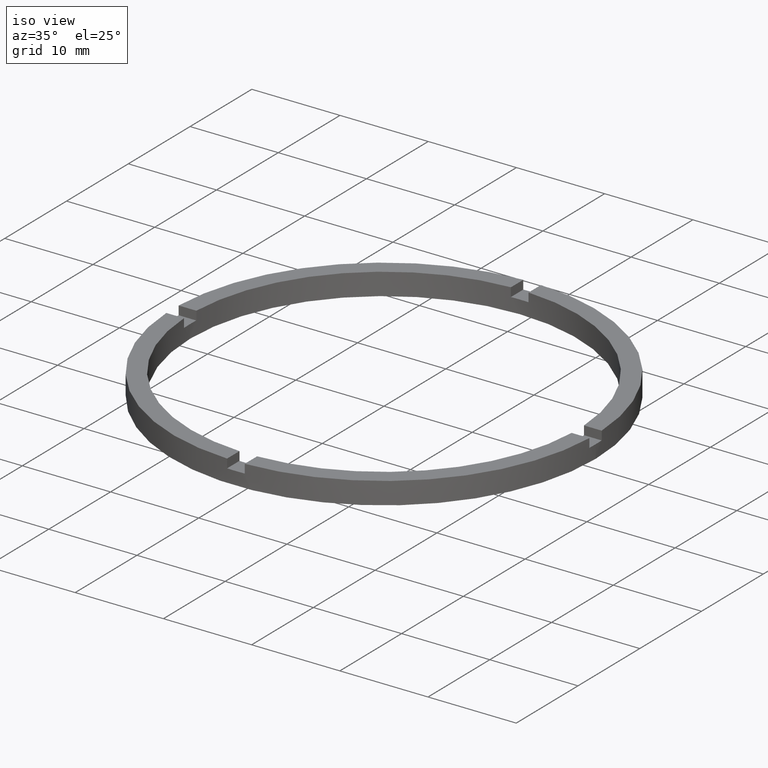
[diagram: clean part render]
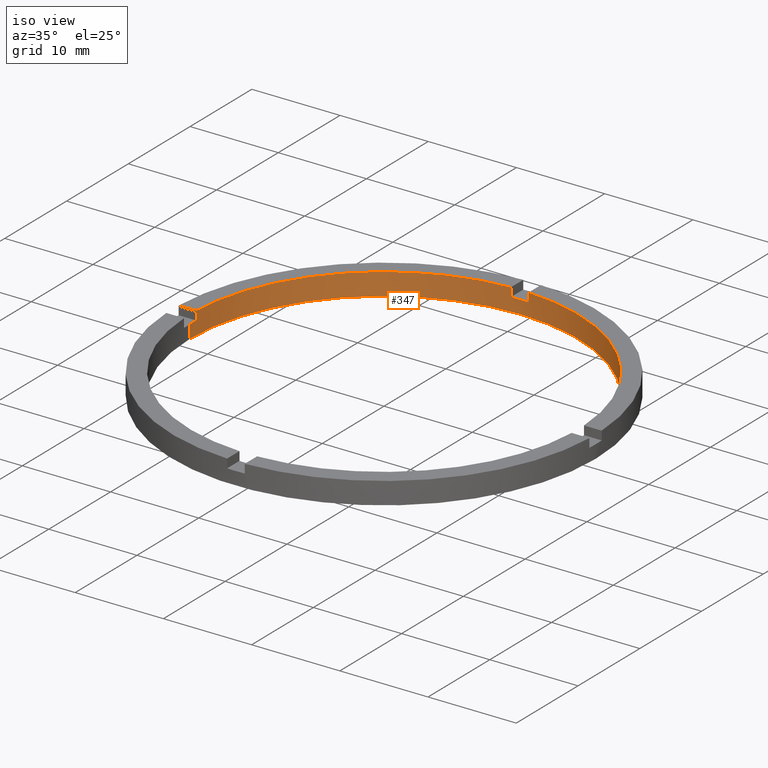
[diagram: same view with one face highlighted and labeled with its STEP entity id]
A machine part, iso view. The second image highlights one B-rep face of the part: STEP entity #347.
In plain terms, the highlighted cylindrical surface (partial cylindrical patch) has radius 22 mm, axis along (-0, -0, -1).
Its self-contained STEP definition (entity closure, byte-faithful):
#5 = VERTEX_POINT ( 'NONE', #335 ) ;
#14 = EDGE_CURVE ( 'NONE', #556, #679, #307, .T. ) ;
#15 = VERTEX_POINT ( 'NONE', #573 ) ;
#28 = CARTESIAN_POINT ( 'NONE',  ( 0.000000000000000000, 0.000000000000000000, 0.000000000000000000 ) ) ;
#33 = ORIENTED_EDGE ( 'NONE', *, *, #58, .F. ) ;
#52 = LINE ( 'NONE', #604, #579 ) ;
#58 = EDGE_CURVE ( 'NONE', #556, #5, #52, .T. ) ;
#60 = CIRCLE ( 'NONE', #86, 22.00000000000000000 ) ;
#74 = EDGE_CURVE ( 'NONE', #5, #433, #60, .T. ) ;
#86 = AXIS2_PLACEMENT_3D ( 'NONE', #28, #748, #753 ) ;
#90 = CYLINDRICAL_SURFACE ( 'NONE', #259, 22.00000000000000000 ) ;
#92 = VECTOR ( 'NONE', #435, 1000.000000000000000 ) ;
#94 = CARTESIAN_POINT ( 'NONE',  ( -21.97726097583591098, 0.9999999999999744649, 1.500000000000000000 ) ) ;
#96 = FACE_OUTER_BOUND ( 'NONE', #500, .T. ) ;
#98 = LINE ( 'NONE', #771, #92 ) ;
#105 = CIRCLE ( 'NONE', #308, 22.00000000000000000 ) ;
#120 = DIRECTION ( 'NONE',  ( 0.000000000000000000, 0.000000000000000000, 1.000000000000000000 ) ) ;
#124 = EDGE_CURVE ( 'NONE', #693, #679, #316, .T. ) ;
#126 = DIRECTION ( 'NONE',  ( 1.000000000000000000, 0.000000000000000000, 0.000000000000000000 ) ) ;
#127 = DIRECTION ( 'NONE',  ( -0.000000000000000000, -0.000000000000000000, -1.000000000000000000 ) ) ;
#134 = DIRECTION ( 'NONE',  ( 0.000000000000000000, 0.000000000000000000, 1.000000000000000000 ) ) ;
#138 = CARTESIAN_POINT ( 'NONE',  ( -1.000000000000025535, 21.97726097583590388, 1.500000000000000000 ) ) ;
#144 = EDGE_CURVE ( 'NONE', #271, #272, #306, .T. ) ;
#148 = CARTESIAN_POINT ( 'NONE',  ( -22.00000000000000000, 0.000000000000000000, 0.000000000000000000 ) ) ;
#153 = VERTEX_POINT ( 'NONE', #614 ) ;
#160 = EDGE_CURVE ( 'NONE', #153, #384, #359, .T. ) ;
#166 = ORIENTED_EDGE ( 'NONE', *, *, #766, .F. ) ;
#187 = DIRECTION ( 'NONE',  ( 0.000000000000000000, 0.000000000000000000, 1.000000000000000000 ) ) ;
#194 = DIRECTION ( 'NONE',  ( -0.000000000000000000, -0.000000000000000000, -1.000000000000000000 ) ) ;
#204 = CARTESIAN_POINT ( 'NONE',  ( 21.97726097583591809, 0.9999999999998421263, 2.500000000000000000 ) ) ;
#219 = AXIS2_PLACEMENT_3D ( 'NONE', #755, #486, #418 ) ;
#222 = VERTEX_POINT ( 'NONE', #138 ) ;
#241 = CARTESIAN_POINT ( 'NONE',  ( 0.000000000000000000, 0.000000000000000000, 1.500000000000000000 ) ) ;
#257 = LINE ( 'NONE', #758, #774 ) ;
#258 = CARTESIAN_POINT ( 'NONE',  ( 21.97726097583591809, 0.9999999999998421263, 2.500000000000000000 ) ) ;
#259 = AXIS2_PLACEMENT_3D ( 'NONE', #499, #559, #652 ) ;
#264 = LINE ( 'NONE', #411, #538 ) ;
#271 = VERTEX_POINT ( 'NONE', #94 ) ;
#272 = VERTEX_POINT ( 'NONE', #392 ) ;
#276 = VERTEX_POINT ( 'NONE', #394 ) ;
#285 = DIRECTION ( 'NONE',  ( 1.000000000000000000, 0.000000000000000000, 0.000000000000000000 ) ) ;
#292 = VECTOR ( 'NONE', #194, 1000.000000000000000 ) ;
#306 = CIRCLE ( 'NONE', #219, 22.00000000000000000 ) ;
#307 = CIRCLE ( 'NONE', #376, 22.00000000000000000 ) ;
#308 = AXIS2_PLACEMENT_3D ( 'NONE', #747, #409, #663 ) ;
#314 = EDGE_CURVE ( 'NONE', #272, #433, #323, .T. ) ;
#316 = LINE ( 'NONE', #204, #292 ) ;
#323 = LINE ( 'NONE', #443, #623 ) ;
#335 = CARTESIAN_POINT ( 'NONE',  ( 22.00000000000000000, 2.694222958124176809E-15, 0.000000000000000000 ) ) ;
#343 = ORIENTED_EDGE ( 'NONE', *, *, #160, .T. ) ;
#347 = ADVANCED_FACE ( 'NONE', ( #96 ), #90, .F. ) ;
#356 = CIRCLE ( 'NONE', #472, 22.00000000000000000 ) ;
#359 = CIRCLE ( 'NONE', #494, 22.00000000000000000 ) ;
#376 = AXIS2_PLACEMENT_3D ( 'NONE', #241, #187, #126 ) ;
#384 = VERTEX_POINT ( 'NONE', #636 ) ;
#392 = CARTESIAN_POINT ( 'NONE',  ( -22.00000000000000000, 0.000000000000000000, 1.500000000000000000 ) ) ;
#394 = CARTESIAN_POINT ( 'NONE',  ( 0.9999999999999735767, 21.97726097583590743, 1.500000000000000000 ) ) ;
#404 = EDGE_CURVE ( 'NONE', #276, #15, #98, .T. ) ;
#407 = DIRECTION ( 'NONE',  ( -0.000000000000000000, -0.000000000000000000, -1.000000000000000000 ) ) ;
#409 = DIRECTION ( 'NONE',  ( 0.000000000000000000, 0.000000000000000000, 1.000000000000000000 ) ) ;
#411 = CARTESIAN_POINT ( 'NONE',  ( -21.97726097583591098, 0.9999999999999744649, 2.500000000000000000 ) ) ;
#418 = DIRECTION ( 'NONE',  ( 1.000000000000000000, 0.000000000000000000, 0.000000000000000000 ) ) ;
#433 = VERTEX_POINT ( 'NONE', #148 ) ;
#435 = DIRECTION ( 'NONE',  ( 0.000000000000000000, 0.000000000000000000, 1.000000000000000000 ) ) ;
#443 = CARTESIAN_POINT ( 'NONE',  ( -22.00000000000000000, 0.000000000000000000, 2.500000000000000000 ) ) ;
#469 = EDGE_CURVE ( 'NONE', #276, #222, #356, .T. ) ;
#472 = AXIS2_PLACEMENT_3D ( 'NONE', #533, #676, #721 ) ;
#482 = ORIENTED_EDGE ( 'NONE', *, *, #740, .F. ) ;
#486 = DIRECTION ( 'NONE',  ( 0.000000000000000000, 0.000000000000000000, 1.000000000000000000 ) ) ;
#494 = AXIS2_PLACEMENT_3D ( 'NONE', #606, #134, #285 ) ;
#495 = DIRECTION ( 'NONE',  ( -0.000000000000000000, -0.000000000000000000, -1.000000000000000000 ) ) ;
#499 = CARTESIAN_POINT ( 'NONE',  ( 0.000000000000000000, 0.000000000000000000, 2.500000000000000000 ) ) ;
#500 = EDGE_LOOP ( 'NONE', ( #33, #704, #552, #618, #612, #690, #166, #343, #482, #555, #546, #769 ) ) ;
#506 = CARTESIAN_POINT ( 'NONE',  ( 21.97726097583591809, 0.9999999999998421263, 1.500000000000000000 ) ) ;
#533 = CARTESIAN_POINT ( 'NONE',  ( 0.000000000000000000, 0.000000000000000000, 1.500000000000000000 ) ) ;
#538 = VECTOR ( 'NONE', #120, 1000.000000000000000 ) ;
#546 = ORIENTED_EDGE ( 'NONE', *, *, #314, .T. ) ;
#552 = ORIENTED_EDGE ( 'NONE', *, *, #124, .F. ) ;
#555 = ORIENTED_EDGE ( 'NONE', *, *, #144, .T. ) ;
#556 = VERTEX_POINT ( 'NONE', #611 ) ;
#559 = DIRECTION ( 'NONE',  ( -0.000000000000000000, -0.000000000000000000, -1.000000000000000000 ) ) ;
#573 = CARTESIAN_POINT ( 'NONE',  ( 0.9999999999999735767, 21.97726097583590743, 2.500000000000000000 ) ) ;
#576 = EDGE_CURVE ( 'NONE', #693, #15, #105, .T. ) ;
#579 = VECTOR ( 'NONE', #407, 1000.000000000000000 ) ;
#604 = CARTESIAN_POINT ( 'NONE',  ( 22.00000000000000000, 2.694222958124176809E-15, 2.500000000000000000 ) ) ;
#606 = CARTESIAN_POINT ( 'NONE',  ( 0.000000000000000000, 0.000000000000000000, 2.500000000000000000 ) ) ;
#611 = CARTESIAN_POINT ( 'NONE',  ( 22.00000000000000000, 2.694222958124176809E-15, 1.500000000000000000 ) ) ;
#612 = ORIENTED_EDGE ( 'NONE', *, *, #404, .F. ) ;
#614 = CARTESIAN_POINT ( 'NONE',  ( -1.000000000000025535, 21.97726097583590388, 2.500000000000000000 ) ) ;
#618 = ORIENTED_EDGE ( 'NONE', *, *, #576, .T. ) ;
#623 = VECTOR ( 'NONE', #495, 1000.000000000000000 ) ;
#636 = CARTESIAN_POINT ( 'NONE',  ( -21.97726097583591098, 0.9999999999999744649, 2.500000000000000000 ) ) ;
#652 = DIRECTION ( 'NONE',  ( -1.000000000000000000, 0.000000000000000000, 0.000000000000000000 ) ) ;
#663 = DIRECTION ( 'NONE',  ( 1.000000000000000000, 0.000000000000000000, 0.000000000000000000 ) ) ;
#676 = DIRECTION ( 'NONE',  ( 0.000000000000000000, -0.000000000000000000, 1.000000000000000000 ) ) ;
#679 = VERTEX_POINT ( 'NONE', #506 ) ;
#690 = ORIENTED_EDGE ( 'NONE', *, *, #469, .T. ) ;
#693 = VERTEX_POINT ( 'NONE', #258 ) ;
#704 = ORIENTED_EDGE ( 'NONE', *, *, #14, .T. ) ;
#721 = DIRECTION ( 'NONE',  ( 1.000000000000000000, 0.000000000000000000, 0.000000000000000000 ) ) ;
#740 = EDGE_CURVE ( 'NONE', #271, #384, #264, .T. ) ;
#747 = CARTESIAN_POINT ( 'NONE',  ( 0.000000000000000000, 0.000000000000000000, 2.500000000000000000 ) ) ;
#748 = DIRECTION ( 'NONE',  ( 0.000000000000000000, 0.000000000000000000, 1.000000000000000000 ) ) ;
#753 = DIRECTION ( 'NONE',  ( 1.000000000000000000, 0.000000000000000000, 0.000000000000000000 ) ) ;
#755 = CARTESIAN_POINT ( 'NONE',  ( 0.000000000000000000, 0.000000000000000000, 1.500000000000000000 ) ) ;
#758 = CARTESIAN_POINT ( 'NONE',  ( -1.000000000000025979, 21.97726097583590743, 2.500000000000000000 ) ) ;
#766 = EDGE_CURVE ( 'NONE', #153, #222, #257, .T. ) ;
#769 = ORIENTED_EDGE ( 'NONE', *, *, #74, .F. ) ;
#771 = CARTESIAN_POINT ( 'NONE',  ( 0.9999999999999740208, 21.97726097583591098, 2.500000000000000000 ) ) ;
#774 = VECTOR ( 'NONE', #127, 1000.000000000000000 ) ;